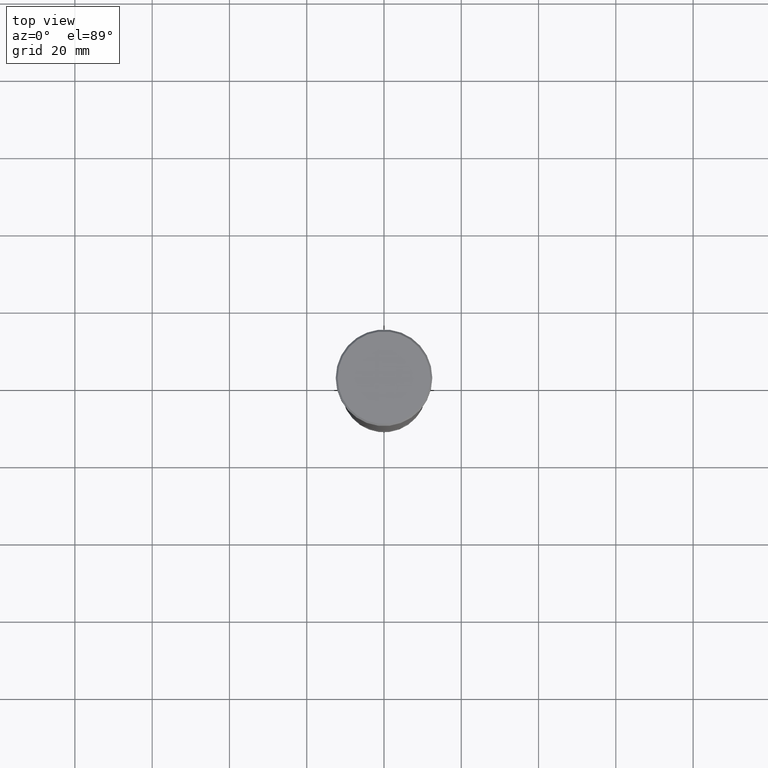
[diagram: clean part render]
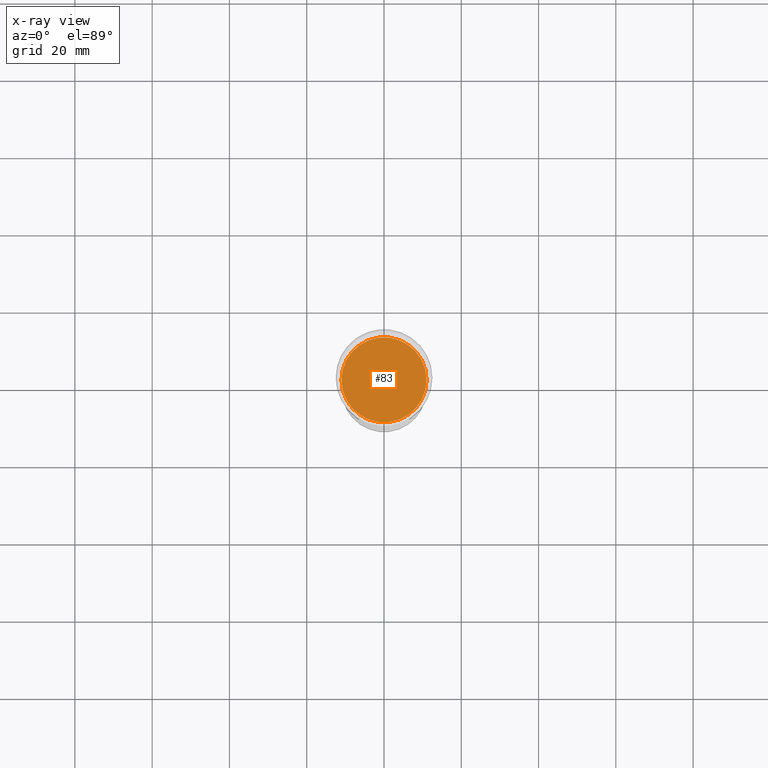
[diagram: x-ray — body ghosted, one internal face saturated and labeled with its STEP entity id]
A machine part, top view, then the same camera in x-ray: the body is ghosted and one INTERNAL B-rep face — a face not visible from any outside direction — is saturated and labeled: STEP entity #83.
In plain terms, the highlighted planar face has unit normal (0, 0, -1).
Its self-contained STEP definition (entity closure, byte-faithful):
#56 = CARTESIAN_POINT ( 'NONE',  ( 0.000000000000000000, 0.000000000000000000, -33.00000000000000000 ) ) ;
#72 = CARTESIAN_POINT ( 'NONE',  ( 0.000000000000000000, 0.000000000000000000, -33.00000000000000000 ) ) ;
#83 = ADVANCED_FACE ( 'NONE', ( #144 ), #590, .T. ) ;
#97 = ORIENTED_EDGE ( 'NONE', *, *, #408, .T. ) ;
#108 = CARTESIAN_POINT ( 'NONE',  ( 11.00000000000000000, 0.000000000000000000, -33.00000000000000000 ) ) ;
#138 = EDGE_CURVE ( 'NONE', #812, #1071, #1027, .T. ) ;
#144 = FACE_OUTER_BOUND ( 'NONE', #869, .T. ) ;
#237 = DIRECTION ( 'NONE',  ( -1.000000000000000000, 0.000000000000000000, 0.000000000000000000 ) ) ;
#399 = DIRECTION ( 'NONE',  ( 0.000000000000000000, 0.000000000000000000, -1.000000000000000000 ) ) ;
#408 = EDGE_CURVE ( 'NONE', #1071, #812, #582, .T. ) ;
#416 = DIRECTION ( 'NONE',  ( -1.000000000000000000, 0.000000000000000000, -0.000000000000000000 ) ) ;
#454 = CARTESIAN_POINT ( 'NONE',  ( -11.00000000000000000, 1.347111479062088405E-15, -33.00000000000000000 ) ) ;
#496 = DIRECTION ( 'NONE',  ( 0.000000000000000000, 0.000000000000000000, -1.000000000000000000 ) ) ;
#505 = CARTESIAN_POINT ( 'NONE',  ( 0.000000000000000000, 0.000000000000000000, -33.00000000000000000 ) ) ;
#582 = CIRCLE ( 'NONE', #815, 11.00000000000000000 ) ;
#590 = PLANE ( 'NONE',  #739 ) ;
#727 = ORIENTED_EDGE ( 'NONE', *, *, #138, .T. ) ;
#739 = AXIS2_PLACEMENT_3D ( 'NONE', #56, #936, #416 ) ;
#812 = VERTEX_POINT ( 'NONE', #454 ) ;
#815 = AXIS2_PLACEMENT_3D ( 'NONE', #72, #399, #237 ) ;
#859 = DIRECTION ( 'NONE',  ( -1.000000000000000000, 0.000000000000000000, 0.000000000000000000 ) ) ;
#869 = EDGE_LOOP ( 'NONE', ( #97, #727 ) ) ;
#936 = DIRECTION ( 'NONE',  ( 0.000000000000000000, 0.000000000000000000, -1.000000000000000000 ) ) ;
#1027 = CIRCLE ( 'NONE', #1084, 11.00000000000000000 ) ;
#1071 = VERTEX_POINT ( 'NONE', #108 ) ;
#1084 = AXIS2_PLACEMENT_3D ( 'NONE', #505, #496, #859 ) ;